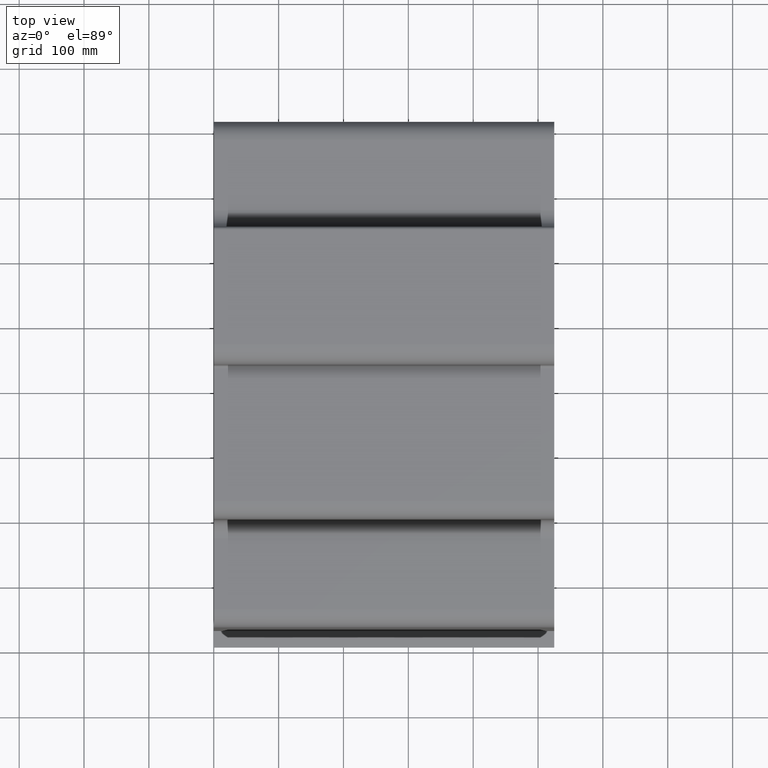
[diagram: clean part render]
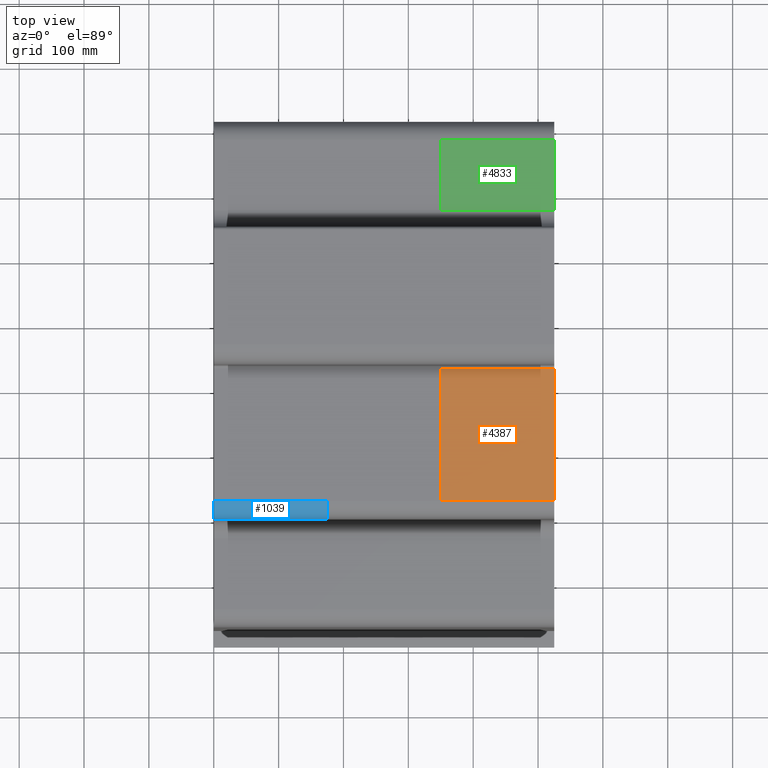
[diagram: same view with three faces highlighted in distinct colors, each labeled with its STEP entity id]
A machine part, top view with three faces highlighted in distinct colors.
Their STEP definitions:

[orange] entity #4387 — the highlighted planar face has unit normal (0, 0, 1).
#4329=CARTESIAN_POINT('',(525.00000000000091,-375.2000000000001,499.99999999999994));
#4330=VERTEX_POINT('',#4329);
#4338=CARTESIAN_POINT('',(350.00000000000057,-375.2000000000001,499.99999999999994));
#4339=VERTEX_POINT('',#4338);
#4340=CARTESIAN_POINT('',(350.00000000000057,-375.2000000000001,499.99999999999994));
#4341=DIRECTION('',(1.0,0.0,0.0));
#4342=VECTOR('',#4341,175.00000000000034);
#4343=LINE('',#4340,#4342);
#4344=EDGE_CURVE('',#4339,#4330,#4343,.T.);
#4357=CARTESIAN_POINT('',(350.00000000000057,-184.85769145390009,500.00000000000006));
#4358=DIRECTION('',(0.0,0.0,1.0));
#4359=DIRECTION('',(1.0,0.0,0.0));
#4360=AXIS2_PLACEMENT_3D('',#4357,#4358,#4359);
#4361=PLANE('',#4360);
#4362=CARTESIAN_POINT('',(525.00000000000091,-171.20000000000005,499.99999999999994));
#4363=VERTEX_POINT('',#4362);
#4364=CARTESIAN_POINT('',(525.00000000000091,-375.2000000000001,500.00000000000205));
#4365=DIRECTION('',(0.0,1.0,0.0));
#4366=VECTOR('',#4365,204.00000000000006);
#4367=LINE('',#4364,#4366);
#4368=EDGE_CURVE('',#4330,#4363,#4367,.T.);
#4369=ORIENTED_EDGE('',*,*,#4368,.T.);
#4370=CARTESIAN_POINT('',(350.00000000000057,-171.20000000000005,499.99999999999994));
#4371=VERTEX_POINT('',#4370);
#4372=CARTESIAN_POINT('',(350.00000000000057,-171.20000000000005,499.99999999999994));
#4373=DIRECTION('',(1.0,0.0,0.0));
#4374=VECTOR('',#4373,175.00000000000034);
#4375=LINE('',#4372,#4374);
#4376=EDGE_CURVE('',#4371,#4363,#4375,.T.);
#4377=ORIENTED_EDGE('',*,*,#4376,.F.);
#4378=CARTESIAN_POINT('',(350.00000000000057,-375.2000000000001,499.99999999999994));
#4379=DIRECTION('',(0.0,1.0,0.0));
#4380=VECTOR('',#4379,204.00000000000006);
#4381=LINE('',#4378,#4380);
#4382=EDGE_CURVE('',#4339,#4371,#4381,.T.);
#4383=ORIENTED_EDGE('',*,*,#4382,.F.);
#4384=ORIENTED_EDGE('',*,*,#4344,.T.);
#4385=EDGE_LOOP('',(#4369,#4377,#4383,#4384));
#4386=FACE_OUTER_BOUND('',#4385,.T.);
#4387=ADVANCED_FACE('',(#4386),#4361,.T.);

[blue] entity #1039 — the highlighted cylindrical surface (edge-blend (fillet) strip) has radius 28 mm, axis along (1, 0, 0).
#981=CARTESIAN_POINT('',(175.00000000000028,-403.20000000000022,472.0));
#982=VERTEX_POINT('',#981);
#989=CARTESIAN_POINT('',(0.0,-403.20000000000022,472.0));
#990=VERTEX_POINT('',#989);
#991=CARTESIAN_POINT('',(0.0,-403.20000000000022,472.0));
#992=DIRECTION('',(1.0,0.0,0.0));
#993=VECTOR('',#992,175.00000000000028);
#994=LINE('',#991,#993);
#995=EDGE_CURVE('',#990,#982,#994,.T.);
#1007=CARTESIAN_POINT('',(0.0,-375.20000000000027,471.99999999999989));
#1008=DIRECTION('',(1.0,0.0,0.0));
#1009=DIRECTION('',(0.0,-0.707106781186545,0.70710678118655));
#1010=AXIS2_PLACEMENT_3D('',#1007,#1008,#1009);
#1011=CYLINDRICAL_SURFACE('',#1010,28.000000000000004);
#1012=CARTESIAN_POINT('',(175.00000000000028,-375.2000000000001,499.99999999999994));
#1013=VERTEX_POINT('',#1012);
#1014=CARTESIAN_POINT('',(175.00000000000028,-375.20000000000027,471.99999999999989));
#1015=DIRECTION('',(-1.0,0.0,0.0));
#1016=DIRECTION('',(0.0,-0.707106781186545,0.70710678118655));
#1017=AXIS2_PLACEMENT_3D('',#1014,#1015,#1016);
#1018=CIRCLE('',#1017,28.000000000000004);
#1019=EDGE_CURVE('',#982,#1013,#1018,.T.);
#1020=ORIENTED_EDGE('',*,*,#1019,.T.);
#1021=CARTESIAN_POINT('',(0.0,-375.2000000000001,499.99999999999994));
#1022=VERTEX_POINT('',#1021);
#1023=CARTESIAN_POINT('',(0.0,-375.2000000000001,499.99999999999994));
#1024=DIRECTION('',(1.0,0.0,0.0));
#1025=VECTOR('',#1024,175.00000000000028);
#1026=LINE('',#1023,#1025);
#1027=EDGE_CURVE('',#1022,#1013,#1026,.T.);
#1028=ORIENTED_EDGE('',*,*,#1027,.F.);
#1029=CARTESIAN_POINT('',(0.0,-375.20000000000027,471.99999999999989));
#1030=DIRECTION('',(-1.0,0.0,0.0));
#1031=DIRECTION('',(0.0,-0.707106781186545,0.70710678118655));
#1032=AXIS2_PLACEMENT_3D('',#1029,#1030,#1031);
#1033=CIRCLE('',#1032,28.000000000000004);
#1034=EDGE_CURVE('',#990,#1022,#1033,.T.);
#1035=ORIENTED_EDGE('',*,*,#1034,.F.);
#1036=ORIENTED_EDGE('',*,*,#995,.T.);
#1037=EDGE_LOOP('',(#1020,#1028,#1035,#1036));
#1038=FACE_OUTER_BOUND('',#1037,.T.);
#1039=ADVANCED_FACE('',(#1038),#1011,.T.);

[green] entity #4833 — the highlighted planar face has unit normal (0, 0, 1).
#4775=CARTESIAN_POINT('',(525.00000000000091,74.799999999999898,374.99999999999994));
#4776=VERTEX_POINT('',#4775);
#4784=CARTESIAN_POINT('',(350.00000000000057,74.799999999999898,374.99999999999994));
#4785=VERTEX_POINT('',#4784);
#4786=CARTESIAN_POINT('',(350.00000000000057,74.799999999999898,374.99999999999994));
#4787=DIRECTION('',(1.0,0.0,0.0));
#4788=VECTOR('',#4787,175.00000000000034);
#4789=LINE('',#4786,#4788);
#4790=EDGE_CURVE('',#4785,#4776,#4789,.T.);
#4803=CARTESIAN_POINT('',(350.00000000000057,74.799999999999898,374.99999999999994));
#4804=DIRECTION('',(0.0,0.0,1.0));
#4805=DIRECTION('',(1.0,0.0,0.0));
#4806=AXIS2_PLACEMENT_3D('',#4803,#4804,#4805);
#4807=PLANE('',#4806);
#4808=CARTESIAN_POINT('',(525.00000000000091,183.79999999999995,375.0));
#4809=VERTEX_POINT('',#4808);
#4810=CARTESIAN_POINT('',(525.00000000000091,74.799999999999898,374.99999999999994));
#4811=DIRECTION('',(0.0,1.0,0.0));
#4812=VECTOR('',#4811,109.00000000000006);
#4813=LINE('',#4810,#4812);
#4814=EDGE_CURVE('',#4776,#4809,#4813,.T.);
#4815=ORIENTED_EDGE('',*,*,#4814,.T.);
#4816=CARTESIAN_POINT('',(350.00000000000057,183.79999999999995,375.0));
#4817=VERTEX_POINT('',#4816);
#4818=CARTESIAN_POINT('',(350.00000000000057,183.79999999999995,375.0));
#4819=DIRECTION('',(1.0,0.0,0.0));
#4820=VECTOR('',#4819,175.00000000000034);
#4821=LINE('',#4818,#4820);
#4822=EDGE_CURVE('',#4817,#4809,#4821,.T.);
#4823=ORIENTED_EDGE('',*,*,#4822,.F.);
#4824=CARTESIAN_POINT('',(350.00000000000057,74.799999999999898,374.99999999999994));
#4825=DIRECTION('',(0.0,1.0,0.0));
#4826=VECTOR('',#4825,109.00000000000006);
#4827=LINE('',#4824,#4826);
#4828=EDGE_CURVE('',#4785,#4817,#4827,.T.);
#4829=ORIENTED_EDGE('',*,*,#4828,.F.);
#4830=ORIENTED_EDGE('',*,*,#4790,.T.);
#4831=EDGE_LOOP('',(#4815,#4823,#4829,#4830));
#4832=FACE_OUTER_BOUND('',#4831,.T.);
#4833=ADVANCED_FACE('',(#4832),#4807,.T.);